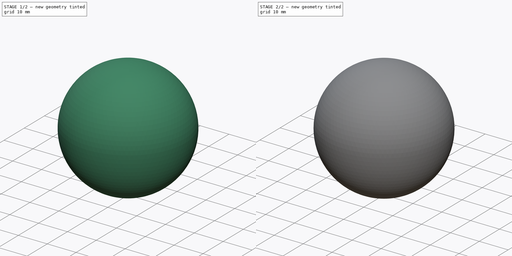
[diagram: build sequence overview — one tinted view per stage of 2, left to right]
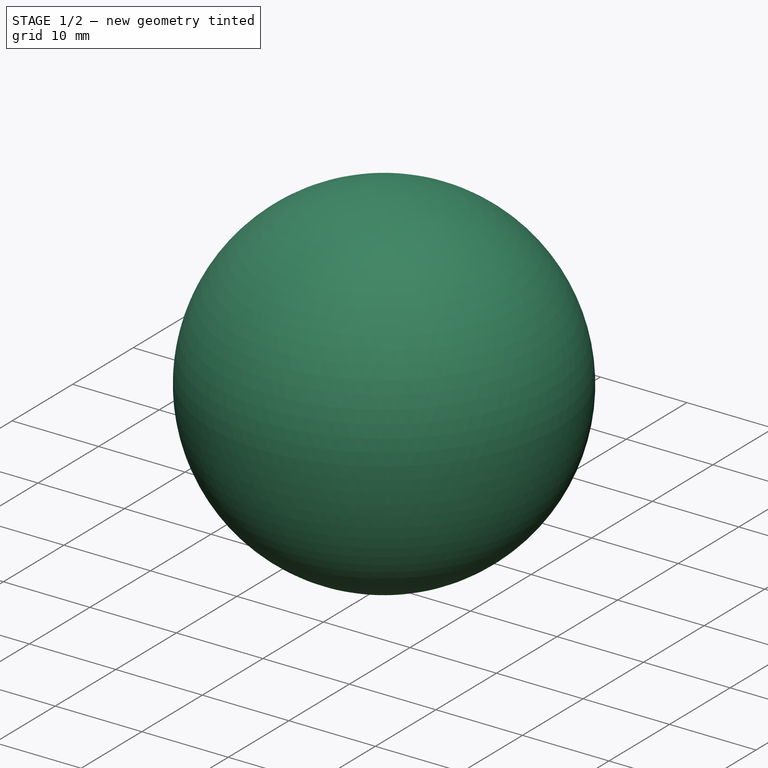
[diagram: stage 1 of 2 — iso view after this stage's code; geometry added in this stage tinted green]
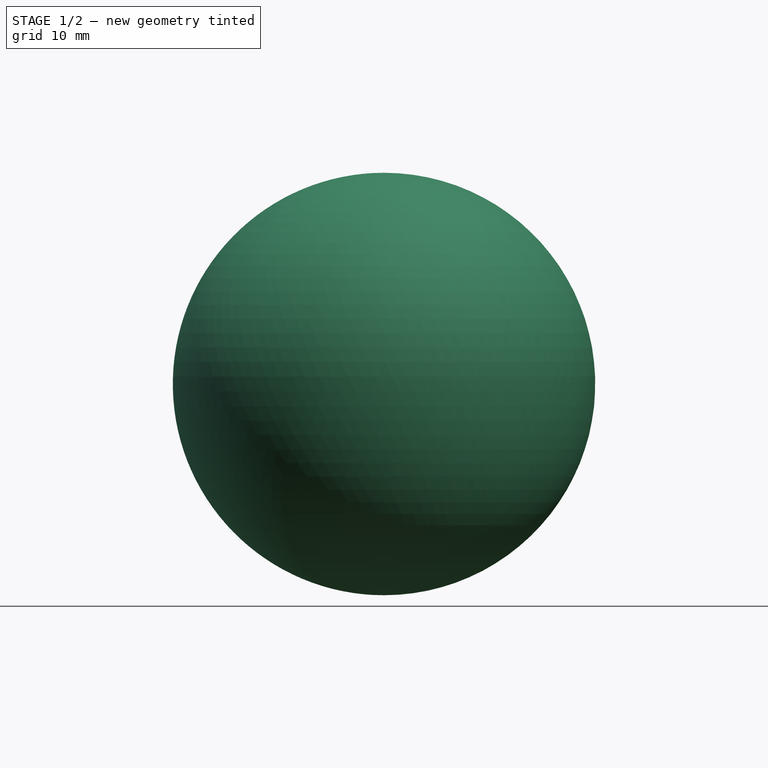
[diagram: stage 1 of 2 — front view after this stage's code; geometry added in this stage tinted green]
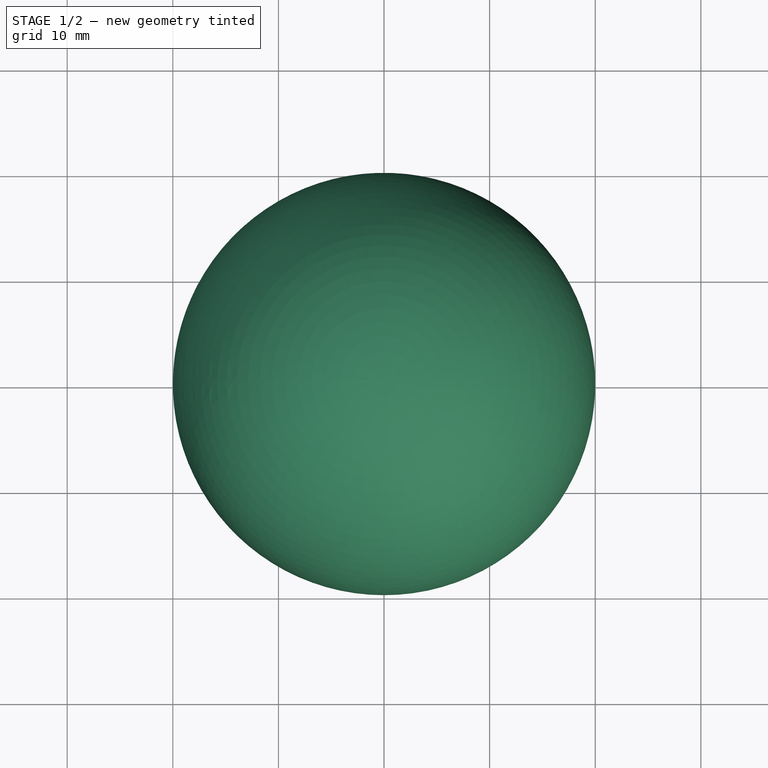
[diagram: stage 1 of 2 — top view after this stage's code; geometry added in this stage tinted green]
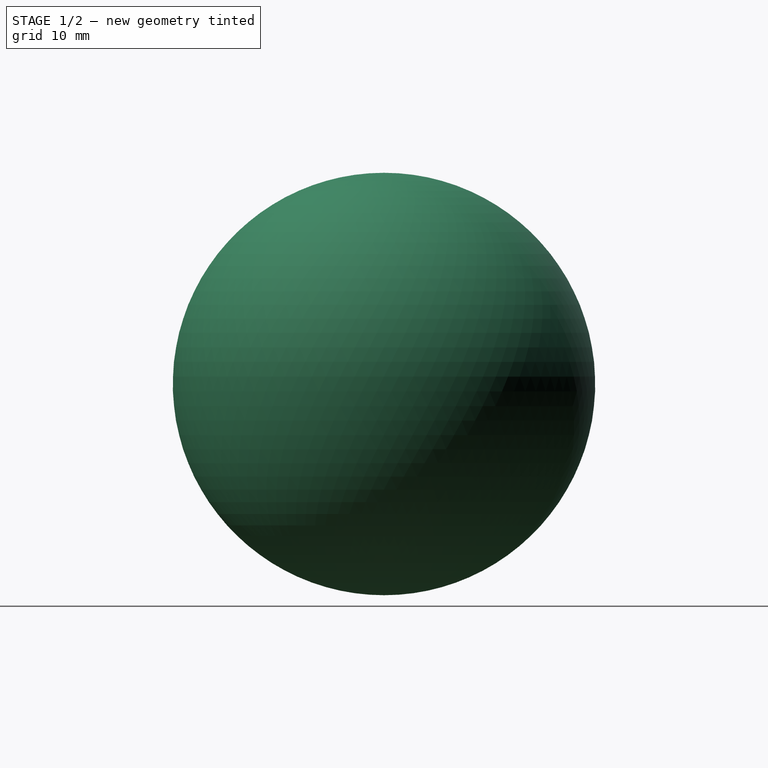
[diagram: stage 1 of 2 — right view after this stage's code; geometry added in this stage tinted green]
FCSTD DOCUMENT  (FreeCAD 2022.709R28846 (Git))
Label: firefly_v1
License: All rights reserved
LicenseURL: http://en.wikipedia.org/wiki/All_rights_reserved
objects: Part::Feature×21, App::Link×7, App::Part×6, Sketcher::SketchObject×3, PartDesign::CoordinateSystem×1, PartDesign::Revolution×1, PartDesign::Pocket×1, PartDesign::Body×1
note: 32 computed .brp shape members not serialized (recipe doc carries the construction recipe); baked Part::Feature solids carry a one-line shape summary decoded from their .brp

FEATURE [PartDesign::CoordinateSystem] Local_CS_3165
  AttacherType = Attacher::AttachEngine3D
  AttachmentSupport = -> [X_Axis001]
  MapMode = 2
  Support = -> [X_Axis001]
  TreeRank = 0
FEATURE [Part::Feature] Pcb_3165
  Placement = pos=(-50.7999,50.8008,0) rot=(0,0,1;0rad)
  TreeRank = 0
  shape: bbox 40.64 x 40.64 x 1.6 mm, 75 faces (baked)
FEATURE [Sketcher::SketchObject] PCB_Sketch_3165
  ArcFitTolerance = 0
  FullyConstrained = false
  TreeRank = 0
  sketch-geometry (24):
    g0: LineSegment StartX=-19.2041 StartY=13.8159 StartZ=0 EndX=-18.465 EndY=13.0769 EndZ=0
    g1: LineSegment StartX=19.2041 StartY=13.8159 StartZ=0 EndX=18.465 EndY=13.0769 EndZ=0
    g2: LineSegment StartX=-13.0769 StartY=-18.465 StartZ=0 EndX=-13.8159 EndY=-19.2041 EndZ=0
    g3: LineSegment StartX=-18.465 StartY=-13.0769 StartZ=0 EndX=-19.2041 EndY=-13.8159 EndZ=0
    g4: LineSegment StartX=18.465 StartY=-13.0769 StartZ=0 EndX=19.2041 EndY=-13.8159 EndZ=0
    g5: LineSegment StartX=13.0769 StartY=-18.465 StartZ=0 EndX=13.8159 EndY=-19.2041 EndZ=0
    g6: LineSegment StartX=-13.8159 StartY=19.2041 StartZ=0 EndX=-13.0769 EndY=18.465 EndZ=0
    g7: LineSegment StartX=13.8159 StartY=19.2041 StartZ=0 EndX=13.0769 EndY=18.465 EndZ=0
    g8: ArcOfCircle CenterX=16.51 CenterY=-16.51 CenterZ=0 NormalX=0 NormalY=0 NormalZ=-1 AngleXU=2.35619 Radius=3.80999 StartAngle=0 EndAngle=3.14159
    g9: ArcOfCircle CenterX=-16.51 CenterY=-16.51 CenterZ=0 NormalX=0 NormalY=0 NormalZ=-1 AngleXU=-2.35619 Radius=3.80999 StartAngle=0 EndAngle=3.14159
    g10: ArcOfCircle CenterX=-10.9556 CenterY=20.5864 CenterZ=0 NormalX=0 NormalY=0 NormalZ=-1 AngleXU=-2.05985 Radius=3 StartAngle=0 EndAngle=1.27445
    g11: ArcOfCircle CenterX=20.5864 CenterY=10.9556 CenterZ=0 NormalX=0 NormalY=0 NormalZ=-1 AngleXU=-0.489056 Radius=3 StartAngle=0 EndAngle=1.27445
    g12: ArcOfCircle CenterX=-20.5864 CenterY=10.9556 CenterZ=0 NormalX=0 NormalY=0 NormalZ=-1 AngleXU=2.35619 Radius=3 StartAngle=0 EndAngle=1.27445
    g13: ArcOfCircle CenterX=1.9315e-06 CenterY=-1.81384e-07 CenterZ=0 NormalX=0 NormalY=0 NormalZ=-1 AngleXU=-0.489056 Radius=20.32 StartAngle=0 EndAngle=0.978112
    g14: ArcOfCircle CenterX=-20.5864 CenterY=-10.9556 CenterZ=0 NormalX=0 NormalY=0 NormalZ=-1 AngleXU=2.65254 Radius=3 StartAngle=0 EndAngle=1.27445
    g15: ArcOfCircle CenterX=-1.9315e-06 CenterY=-1.81384e-07 CenterZ=0 NormalX=0 NormalY=0 NormalZ=-1 AngleXU=2.65254 Radius=20.32 StartAngle=0 EndAngle=0.978112
    g16: ArcOfCircle CenterX=-16.51 CenterY=16.51 CenterZ=0 NormalX=0 NormalY=0 NormalZ=-1 AngleXU=-0.785398 Radius=3.81 StartAngle=0 EndAngle=3.14159
    g17: ArcOfCircle CenterX=0 CenterY=-1.20457e-06 CenterZ=0 NormalX=0 NormalY=0 NormalZ=-1 AngleXU=1.08174 Radius=20.32 StartAngle=0 EndAngle=0.978111
    g18: ArcOfCircle CenterX=16.51 CenterY=16.51 CenterZ=0 NormalX=0 NormalY=0 NormalZ=-1 AngleXU=0.785405 Radius=3.81 StartAngle=6.28318 EndAngle=9.42477
    g19: ArcOfCircle CenterX=10.9556 CenterY=20.5864 CenterZ=0 NormalX=0 NormalY=0 NormalZ=-1 AngleXU=-2.35619 Radius=3 StartAngle=0 EndAngle=1.27445
    g20: ArcOfCircle CenterX=10.9556 CenterY=-20.5864 CenterZ=0 NormalX=0 NormalY=0 NormalZ=-1 AngleXU=1.08174 Radius=3 StartAngle=0 EndAngle=1.27445
    g21: ArcOfCircle CenterX=0 CenterY=2.65843e-06 CenterZ=0 NormalX=0 NormalY=0 NormalZ=-1 AngleXU=-2.05985 Radius=20.32 StartAngle=0 EndAngle=0.978112
    g22: ArcOfCircle CenterX=20.5864 CenterY=-10.9556 CenterZ=0 NormalX=0 NormalY=0 NormalZ=-1 AngleXU=-0.785398 Radius=3 StartAngle=0 EndAngle=1.27445
    g23: ArcOfCircle CenterX=-10.9556 CenterY=-20.5864 CenterZ=0 NormalX=0 NormalY=0 NormalZ=-1 AngleXU=0.785399 Radius=3 StartAngle=0 EndAngle=1.27445
  constraints (24):
    c: Coincident(g3,g9)
    c: Coincident(g0,g16)
    c: Coincident(g3,g14)
    c: Coincident(g0,g12)
    c: Coincident(g13,g14)
    c: Coincident(g12,g13)
    c: Coincident(g2,g9)
    c: Coincident(g6,g16)
    c: Coincident(g2,g23)
    c: Coincident(g6,g10)
    c: Coincident(g21,g23)
    c: Coincident(g10,g17)
    c: Coincident(g20,g21)
    c: Coincident(g17,g19)
    c: Coincident(g5,g20)
    c: Coincident(g7,g19)
    c: Coincident(g5,g8)
    c: Coincident(g7,g18)
    c: Coincident(g15,g22)
    c: Coincident(g11,g15)
    c: Coincident(g4,g22)
    c: Coincident(g1,g11)
    c: Coincident(g4,g8)
    c: Coincident(g1,g18)
FEATURE [Part::Feature] Shape  label="R3_R_Axial_DIN0204_L36mm_D16mm_P762mm_Horizontal_c94ef6852790"
  Placement = pos=(-7.61992,-3.8092,0) rot=(0,0,1;1.5708rad)
  TreeRank = 0
  shape: bbox 1.732 x 8.285 x 4.666 mm, 17 faces (baked)
FEATURE [Part::Feature] Shape001  label="J6_PinHeader_1x02_P254mm_Vertical_1fb545e78c9a"
  Placement = pos=(1.27,19.05,0) rot=(0,0,-1;1.5708rad)
  TreeRank = 0
  shape: bbox 5.08 x 2.54 x 11.54 mm, 52 faces (baked)
FEATURE [Part::Feature] Shape002  label="J2_PinHeader_2x03_P254mm_Vertical_75255a230ba9"
  Placement = pos=(-1.26992,15.2408,0) rot=(0,0,1;0rad)
  TreeRank = 0
  shape: bbox 5.08 x 7.62 x 11.54 mm, 130 faces (baked)
FEATURE [App::Link] R3_R_Axial_DIN0204_L36mm_D16mm_P762mm_Horizontal_c94ef6852790_ln_  label="R1_R_Axial_DIN0204_L36mm_D16mm_P762mm_Horizontal_8458a7f7837b"
  AutoLinkLabel = false
  AutoPlacement = true
  LinkPlacement = pos=(7.62008,-3.8092,0) rot=(0,0,1;1.5708rad)
  LinkedObject = -> Shape
  Placement = pos=(7.62008,-3.8092,0) rot=(0,0,1;1.5708rad)
  SyncGroupVisibility = false
  TreeRank = 0
  _LinkVersion = 1
FEATURE [App::Link] R3_R_Axial_DIN0204_L36mm_D16mm_P762mm_Horizontal_c94ef6852790_ln_001  label="R2_R_Axial_DIN0204_L36mm_D16mm_P762mm_Horizontal_5ecdbd408406"
  AutoLinkLabel = false
  AutoPlacement = true
  LinkPlacement = pos=(10.1601,-3.8092,0) rot=(0,0,1;1.5708rad)
  LinkedObject = -> Shape
  Placement = pos=(10.1601,-3.8092,0) rot=(0,0,1;1.5708rad)
  SyncGroupVisibility = false
  TreeRank = 0
  _LinkVersion = 1
FEATURE [Part::Feature] Part__Feature  label="Sweep"
  Placement = pos=(0,0,18) rot=(0,0,1;0rad)
  TreeRank = 0
  shape: bbox 1.087 x 3.44 x 20 mm, 6 faces (baked)
FEATURE [Part::Feature] Part__Feature001  label="Sweep001"
  Placement = pos=(0,0,18) rot=(0,0,1;0rad)
  TreeRank = 0
  shape: bbox 2.544 x 3.312 x 20 mm, 6 faces (baked)
FEATURE [Part::Feature] Part__Feature002  label="Sweep002"
  Placement = pos=(0,0,18) rot=(0,0,1;0rad)
  TreeRank = 0
  shape: bbox 2.544 x 3.312 x 20 mm, 6 faces (baked)
FEATURE [Part::Feature] Part__Feature003  label="Sweep003"
  Placement = pos=(0,0,18) rot=(0,0,1;0rad)
  TreeRank = 0
  shape: bbox 1.087 x 3.44 x 20 mm, 6 faces (baked)
FEATURE [Part::Feature] Part__Feature004  label="Body"
  Placement = pos=(0,0,18) rot=(0,0,1;0rad)
  TreeRank = 0
  shape: bbox 5.4 x 5.8 x 8.6 mm, 6 faces (baked)
FEATURE [App::Part] Part  label="D1_Part_bb995b444e8d"
  ClaimAllChildren = false
  ExportMode = 1
  Group = -> [Part__Feature,Part__Feature001,Part__Feature002,Part__Feature003,Part__Feature004]
  Origin = -> Origin008
  Placement = pos=(8e-05,0.0008,0) rot=(0,0,1;0rad)
  TreeRank = 0
  _ExportChildren = -> [Part__Feature,Part__Feature001,Part__Feature002,Part__Feature003,Part__Feature004]
  _GroupVersion = 1
FEATURE [App::Link] J6_PinHeader_1x02_P254mm_Vertical_1fb545e78c9a_ln_  label="J3_PinHeader_1x02_P254mm_Vertical_b2013f4671be"
  AutoLinkLabel = false
  AutoPlacement = true
  LinkPlacement = pos=(19.0501,1.2708,0) rot=(0,0,1;0rad)
  LinkedObject = -> Shape001
  Placement = pos=(19.0501,1.2708,0) rot=(0,0,1;0rad)
  SyncGroupVisibility = false
  TreeRank = 0
  _LinkVersion = 1
FEATURE [App::Link] J6_PinHeader_1x02_P254mm_Vertical_1fb545e78c9a_ln_001  label="J5_PinHeader_1x02_P254mm_Vertical_84eae51975c3"
  AutoLinkLabel = false
  AutoPlacement = true
  LinkPlacement = pos=(1.27008,-19.0492,0) rot=(0,0,-1;1.5708rad)
  LinkedObject = -> Shape001
  Placement = pos=(1.27008,-19.0492,0) rot=(0,0,-1;1.5708rad)
  SyncGroupVisibility = false
  TreeRank = 0
  _LinkVersion = 1
FEATURE [Part::Feature] Shape003  label="C1_CP_Radial_D63mm_P250mm_7c2f516e95ce"
  Placement = pos=(8.12808,13.9708,0) rot=(0,0,-1;1.5708rad)
  TreeRank = 0
  shape: bbox 8.053 x 7.785 x 8.3 mm, 46 faces (baked)
FEATURE [Part::Feature] Part__Feature005  label="DIP_8_W762mm_Socket_sp"
  TreeRank = 0
  shape: bbox 10.16 x 10.16 x 7.787 mm, 128 faces (baked)
FEATURE [Part::Feature] Part__Feature006  label="DIP_8_W762mm_Socket_sp001"
  TreeRank = 0
  shape: bbox 7.874 x 9.27 x 6.98 mm, 148 faces (baked)
FEATURE [App::Part] DIP_8_W762mm_Socket_sp  label="U1_DIP_8_W762mm_Socket_sp002_69b93f21e8f7"
  ClaimAllChildren = false
  ExportMode = 1
  Group = -> [Part__Feature005,Part__Feature006]
  Origin = -> Origin009
  Placement = pos=(-3.80992,-7.6192,0) rot=(0,0,1;0rad)
  TreeRank = 0
  _ExportChildren = -> [Part__Feature005,Part__Feature006]
  _GroupVersion = 1
FEATURE [Part::Feature] Shape004  label="Q1_LED_D5.0mm_18f4e428e7b4"
  Placement = pos=(-1.26992,0.0008,0) rot=(0,0,1;0rad)
  TreeRank = 0
  shape: bbox 5.4 x 5.8 x 14.1 mm, 16 faces (baked)
FEATURE [App::Link] R3_R_Axial_DIN0204_L36mm_D16mm_P762mm_Horizontal_c94ef6852790_ln_002  label="R4_R_Axial_DIN0204_L36mm_D16mm_P762mm_Horizontal_9a7c57c7740b"
  AutoLinkLabel = false
  AutoPlacement = true
  LinkPlacement = pos=(-12.6999,-3.8092,0) rot=(0,0,1;1.5708rad)
  LinkedObject = -> Shape
  Placement = pos=(-12.6999,-3.8092,0) rot=(0,0,1;1.5708rad)
  SyncGroupVisibility = false
  TreeRank = 0
  _LinkVersion = 1
FEATURE [App::Link] R3_R_Axial_DIN0204_L36mm_D16mm_P762mm_Horizontal_c94ef6852790_ln_003  label="R5_R_Axial_DIN0204_L36mm_D16mm_P762mm_Horizontal_b3e8beb4090c"
  AutoLinkLabel = false
  AutoPlacement = true
  LinkPlacement = pos=(-10.16,-3.8092,0) rot=(0,0,1;1.5708rad)
  LinkedObject = -> Shape
  Placement = pos=(-10.16,-3.8092,0) rot=(0,0,1;1.5708rad)
  SyncGroupVisibility = false
  TreeRank = 0
  _LinkVersion = 1
FEATURE [Part::Feature] Shape005  label="C2_C_Disc_D30mm_W20mm_P250mm_075f2212bfdc"
  Placement = pos=(-15.7479,1.2708,0) rot=(0,0,-1;1.5708rad)
  TreeRank = 0
  shape: bbox 2 x 3 x 5.1 mm, 12 faces (baked)
FEATURE [App::Link] J6_PinHeader_1x02_P254mm_Vertical_1fb545e78c9a_ln_002  label="J4_PinHeader_1x02_P254mm_Vertical_479eb6cafd83"
  AutoLinkLabel = false
  AutoPlacement = true
  LinkPlacement = pos=(-19.0499,1.2708,0) rot=(0,0,1;0rad)
  LinkedObject = -> Shape001
  Placement = pos=(-19.0499,1.2708,0) rot=(0,0,1;0rad)
  SyncGroupVisibility = false
  TreeRank = 0
  _LinkVersion = 1
FEATURE [App::Part] Top_3165
  ClaimAllChildren = false
  ExportMode = 1
  Group = -> [Shape,Shape001,Shape002,R3_R_Axial_DIN0204_L36mm_D16mm_P762mm_Horizontal_c94ef6852790_ln_,R3_R_Axial_DIN0204_L36mm_D16mm_P762mm_Horizontal_c94ef6852790_ln_001,Part,J6_PinHeader_1x02_P254mm_Vertical_1fb545e78c9a_ln_,J6_PinHeader_1x02_P254mm_Vertical_1fb545e78c9a_ln_001,Shape003,DIP_8_W762mm_Socket_sp,Shape004,R3_R_Axial_DIN0204_L36mm_D16mm_P762mm_Horizontal_c94ef6852790_ln_002,+3 more]
  Origin = -> Origin003
  TreeRank = 0
  _ExportChildren = -> [Shape,Shape001,Shape002,R3_R_Axial_DIN0204_L36mm_D16mm_P762mm_Horizontal_c94ef6852790_ln_,R3_R_Axial_DIN0204_L36mm_D16mm_P762mm_Horizontal_c94ef6852790_ln_001,Part,J6_PinHeader_1x02_P254mm_Vertical_1fb545e78c9a_ln_,J6_PinHeader_1x02_P254mm_Vertical_1fb545e78c9a_ln_001,Shape003,DIP_8_W762mm_Socket_sp,Shape004,R3_R_Axial_DIN0204_L36mm_D16mm_P762mm_Horizontal_c94ef6852790_ln_002,+3 more]
  _GroupVersion = 1
FEATURE [App::Part] Step_Models_3165
  ClaimAllChildren = false
  ExportMode = 1
  Group = -> [Top_3165]
  Origin = -> Origin002
  TreeRank = 0
  _ExportChildren = -> [Top_3165]
  _GroupVersion = 1
FEATURE [Part::Feature] pads_area020001  label="topPads_3165"
  Placement = pos=(-50.7999,50.8008,0.02) rot=(0,0,1;0rad)
  TreeRank = 0
  shape: bbox 39.8 x 39.8 x 2e-07 mm, 49 faces, 0 solids (baked)
FEATURE [Part::Feature] Shape006001  label="topTracks_3165"
  Placement = pos=(-50.7999,50.8008,0.01) rot=(0,0,1;0rad)
  TreeRank = 0
  shape: bbox 38.35 x 37.13 x 2e-07 mm, 19 faces, 0 solids (baked)
FEATURE [Part::Feature] zones_area001  label="topZones_3165"
  Placement = pos=(-50.7999,50.8008,0.01) rot=(0,0,1;0rad)
  TreeRank = 0
  shape: bbox 40.4 x 40.4 x 2e-07 mm, 1 faces, 0 solids (baked)
FEATURE [Part::Feature] pads_area020022001  label="botPads_3165"
  Placement = pos=(-50.7999,50.8008,-1.62) rot=(0,0,1;0rad)
  TreeRank = 0
  shape: bbox 39.8 x 39.8 x 2e-07 mm, 49 faces, 0 solids (baked)
FEATURE [Part::Feature] Shape006002001  label="botTracks_3165"
  Placement = pos=(-50.7999,50.8008,-1.61) rot=(0,0,1;0rad)
  TreeRank = 0
  shape: bbox 38.35 x 37.13 x 2e-07 mm, 5 faces, 0 solids (baked)
FEATURE [Part::Feature] zones_area002001  label="botZones_3165"
  Placement = pos=(-50.7999,50.8008,-1.61) rot=(0,0,1;0rad)
  TreeRank = 0
  shape: bbox 40.4 x 40.4 x 2e-07 mm, 1 faces, 0 solids (baked)
FEATURE [Part::Feature] topSilks_3a64
  Placement = pos=(-50.7999,50.8008,0.07) rot=(0,0,1;0rad)
  TreeRank = 1
  shape: bbox 40.15 x 40.15 x 2e-07 mm, 56 faces, 0 solids (baked)
FEATURE [App::Part] Board_Geoms_3165
  ClaimAllChildren = false
  ExportMode = 1
  Group = -> [Pcb_3165,PCB_Sketch_3165,pads_area020001,Shape006001,zones_area001,pads_area020022001,Shape006002001,zones_area002001,topSilks_3a64]
  Origin = -> Origin
  TreeRank = 0
  _ExportChildren = -> [Pcb_3165,PCB_Sketch_3165,pads_area020001,Shape006001,zones_area001,pads_area020022001,Shape006002001,zones_area002001,topSilks_3a64]
  _GroupVersion = 1
FEATURE [App::Part] Board_3165  label="firefly"
  ClaimAllChildren = false
  ExportMode = 1
  Group = -> [Local_CS_3165,Board_Geoms_3165,Step_Models_3165]
  Origin = -> Origin001
  TreeRank = 0
  _ExportChildren = -> [Local_CS_3165,Board_Geoms_3165,Step_Models_3165]
  _GroupVersion = 1
FEATURE [Sketcher::SketchObject] Sketch
  ArcFitTolerance = 1e-06
  AttachmentSupport = -> [XZ_Plane010]
  FullyConstrained = true
  MapMode = 5
  Placement = pos=(0,0,0) rot=(1,0,0;1.5708rad)
  Support = -> [XZ_Plane010]
  TreeRank = 12
  sketch-geometry (4):
    g0: ArcOfCircle CenterX=0 CenterY=39 CenterZ=0 NormalX=0 NormalY=0 NormalZ=1 AngleXU=0 Radius=20 StartAngle=1.5708 EndAngle=4.71239
    g1: ArcOfCircle CenterX=0 CenterY=39 CenterZ=0 NormalX=0 NormalY=0 NormalZ=1 AngleXU=0 Radius=19.6 StartAngle=1.5708 EndAngle=4.71239
    g2: LineSegment StartX=0 StartY=59 StartZ=0 EndX=0 EndY=58.6 EndZ=0
    g3: LineSegment StartX=0 StartY=19 StartZ=0 EndX=0 EndY=19.4 EndZ=0
  constraints (13):
    c: PointOnObject(g0,g-2)
    c: PointOnObject(g0,g-2)
    c: Radius(g0) = 20
    c: Coincident(g1,g0)
    c: Coincident(g2,g0)
    c: Coincident(g2,g1)
    c: Vertical(g2)
    c: Coincident(g3,g0)
    c: Coincident(g3,g1)
    c: PointOnObject(g0,g-2)
    c: Vertical(g3)
    c: DistanceY(g2,g2) = 0.4
    c: DistanceY(g-1,g0) = 39
FEATURE [PartDesign::Revolution] Revolution
  Angle = 360
  Axis = (0,2e-16,1)
  Base = (0,0,0)
  ClaimChildren = false
  Fit = 0
  FitJoin = 0
  InnerFit = 0
  InnerFitJoin = 0
  NewSolid = false
  Placement = pos=(0,0,0) rot=(1,0,0;1.5708rad)
  Profile = -> Sketch
  ReferenceAxis = -> Sketch [V_Axis]
  Suppress = false
  TreeRank = 13
  _ProfileBasedVersion = 1
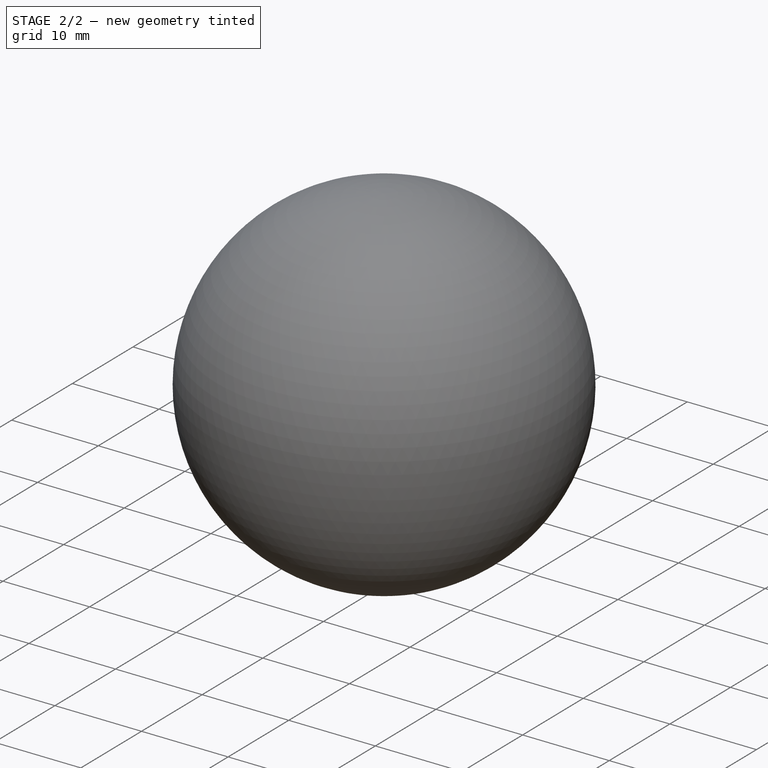
[diagram: stage 2 of 2 — iso view after this stage's code; geometry added in this stage tinted green]
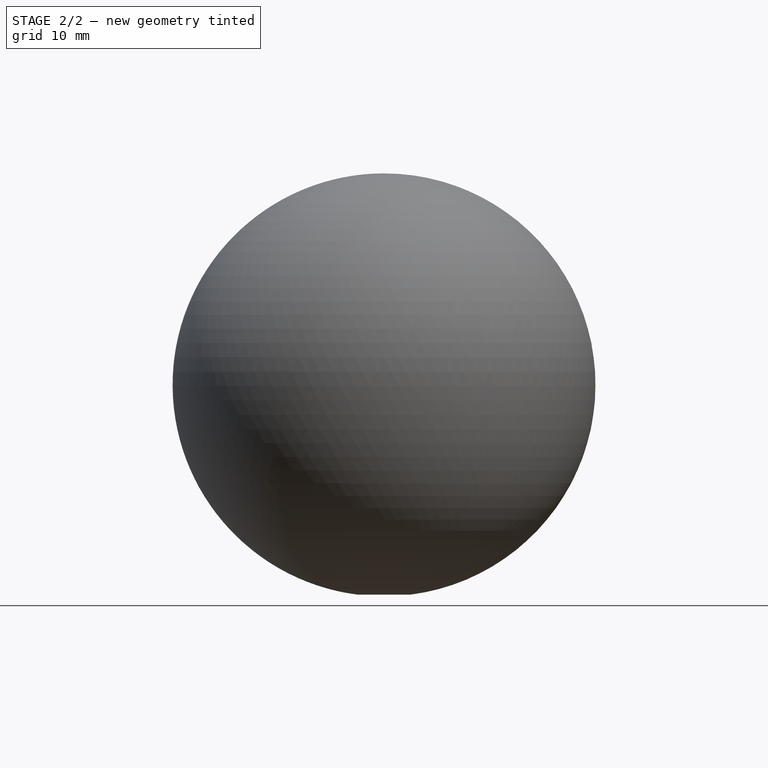
[diagram: stage 2 of 2 — front view after this stage's code; geometry added in this stage tinted green]
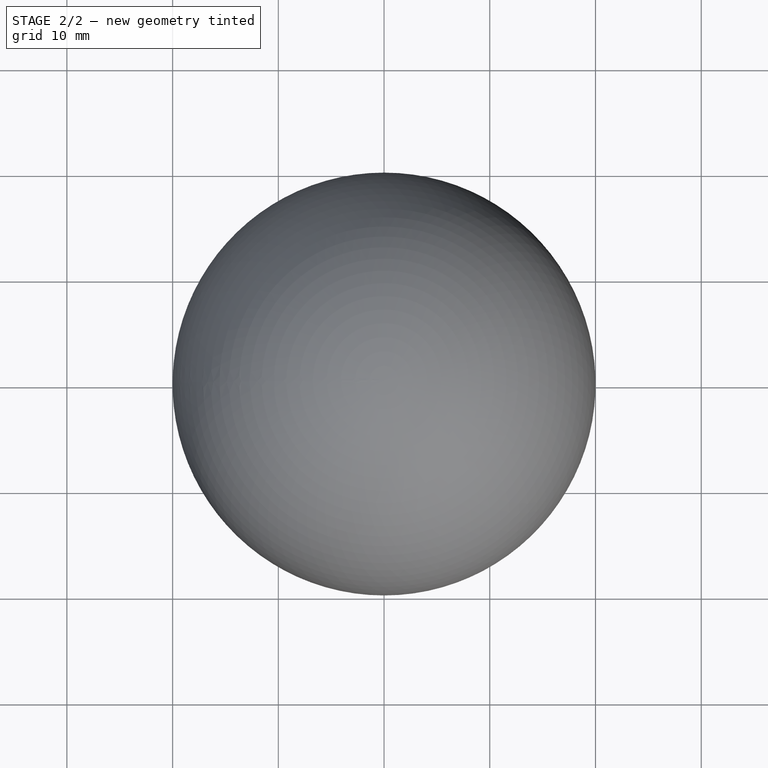
[diagram: stage 2 of 2 — top view after this stage's code; geometry added in this stage tinted green]
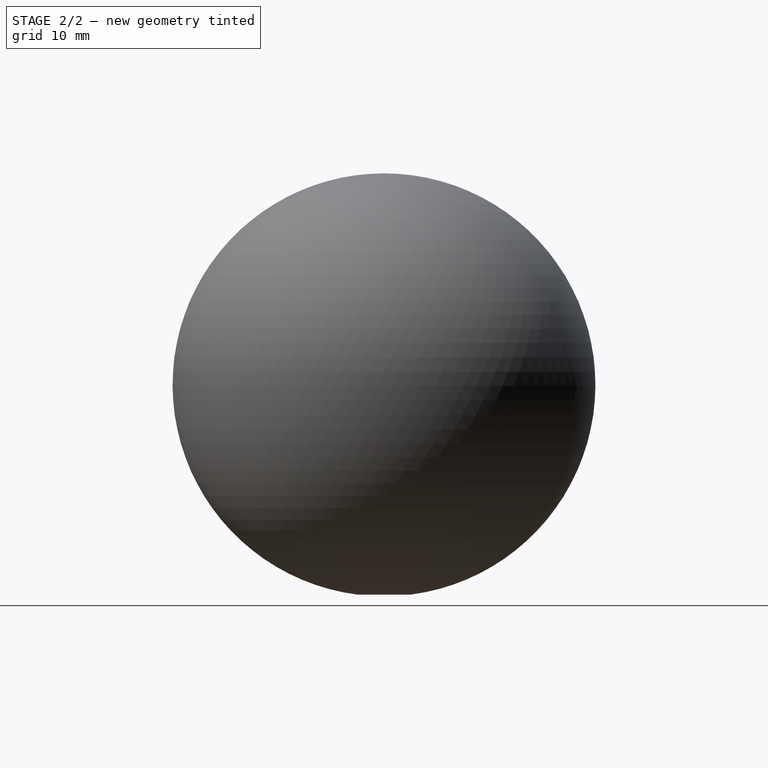
[diagram: stage 2 of 2 — right view after this stage's code; geometry added in this stage tinted green]
FEATURE [Sketcher::SketchObject] Sketch001
  ArcFitTolerance = 1e-06
  FullyConstrained = true
  TreeRank = 14
  sketch-geometry (1):
    g0: Circle CenterX=0 CenterY=0 CenterZ=0 NormalX=0 NormalY=0 NormalZ=1 AngleXU=0 Radius=2.5
  constraints (2):
    c: Coincident(g0,g-1)
    c: Diameter(g0) = 5
FEATURE [PartDesign::Pocket] Pocket
  BaseFeature = -> Revolution
  ClaimChildren = false
  ColoredElements = -> Pocket [Face1,Face3]
  Fit = 0
  FitJoin = 0
  InnerFit = 0
  InnerFitJoin = 0
  InnerTaperAngle = 0
  InnerTaperAngleRev = 0
  Length = 20
  Length2 = 100
  Linearize = true
  NewSolid = false
  Placement = pos=(0,0,0) rot=(1,0,0;1.5708rad)
  Profile = -> Sketch001
  Reversed = true
  Suppress = false
  TreeRank = 15
  Type = 0
  _ProfileBasedVersion = 1
FEATURE [PartDesign::Body] Body  label="Body001"
  AutoGroupSolids = false
  ClaimAllChildren = false
  ExportMode = 0
  Group = -> [Sketch,Revolution,Sketch001,Pocket]
  Origin = -> Origin010
  Tip = -> Pocket
  TreeRank = 11
  _ExportChildren = -> [Revolution,Pocket]
  _GroupVersion = 1
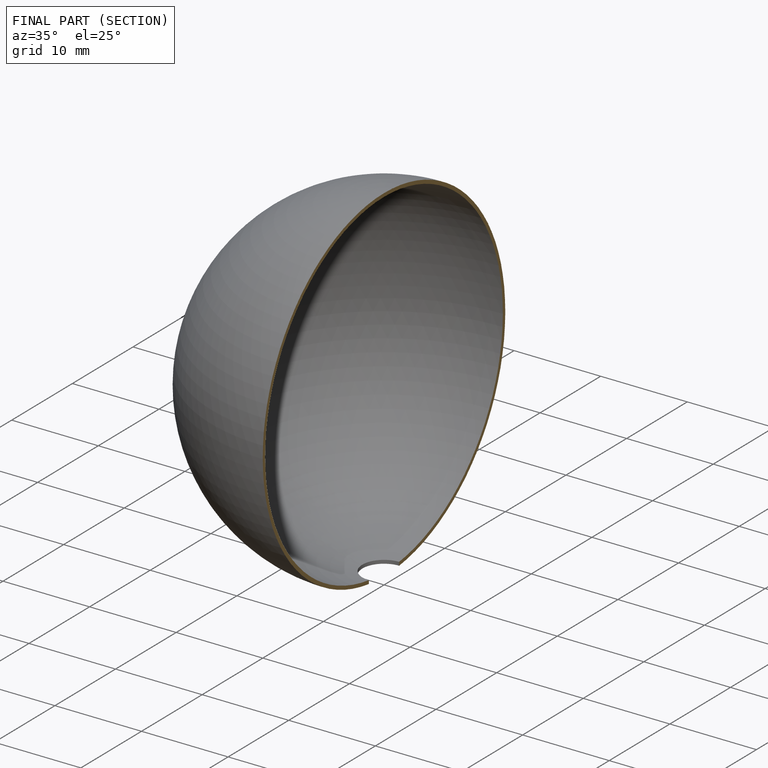
[diagram: finished part — half-section view (interior)]
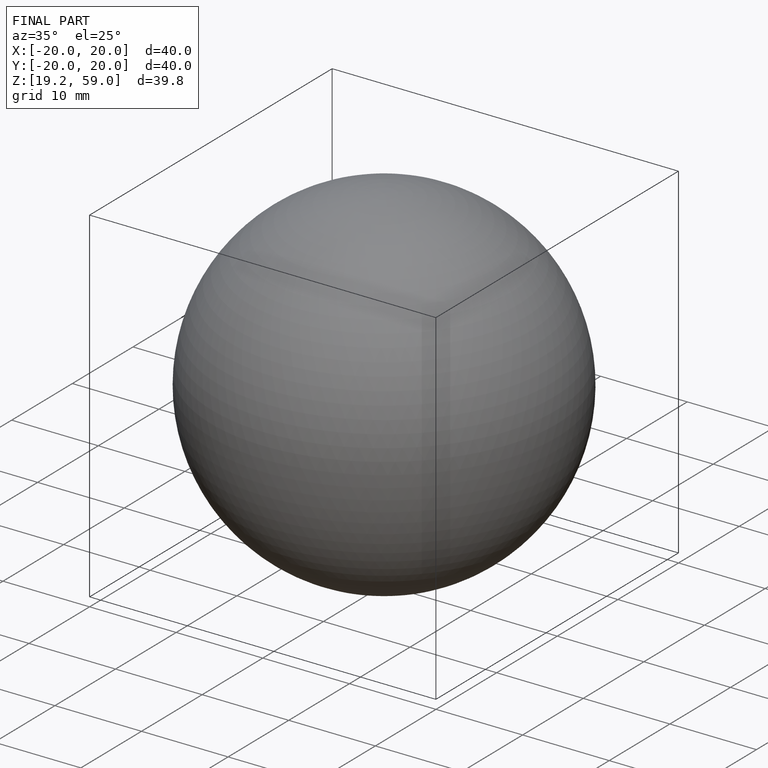
[diagram: finished part — iso view with bounding-box wireframe]
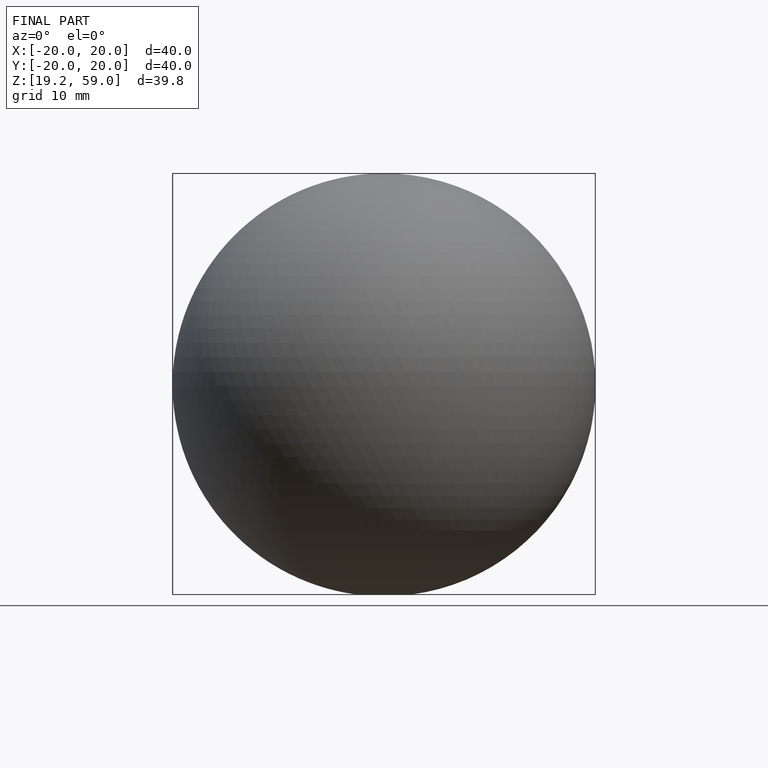
[diagram: finished part — front view with bounding-box wireframe]
